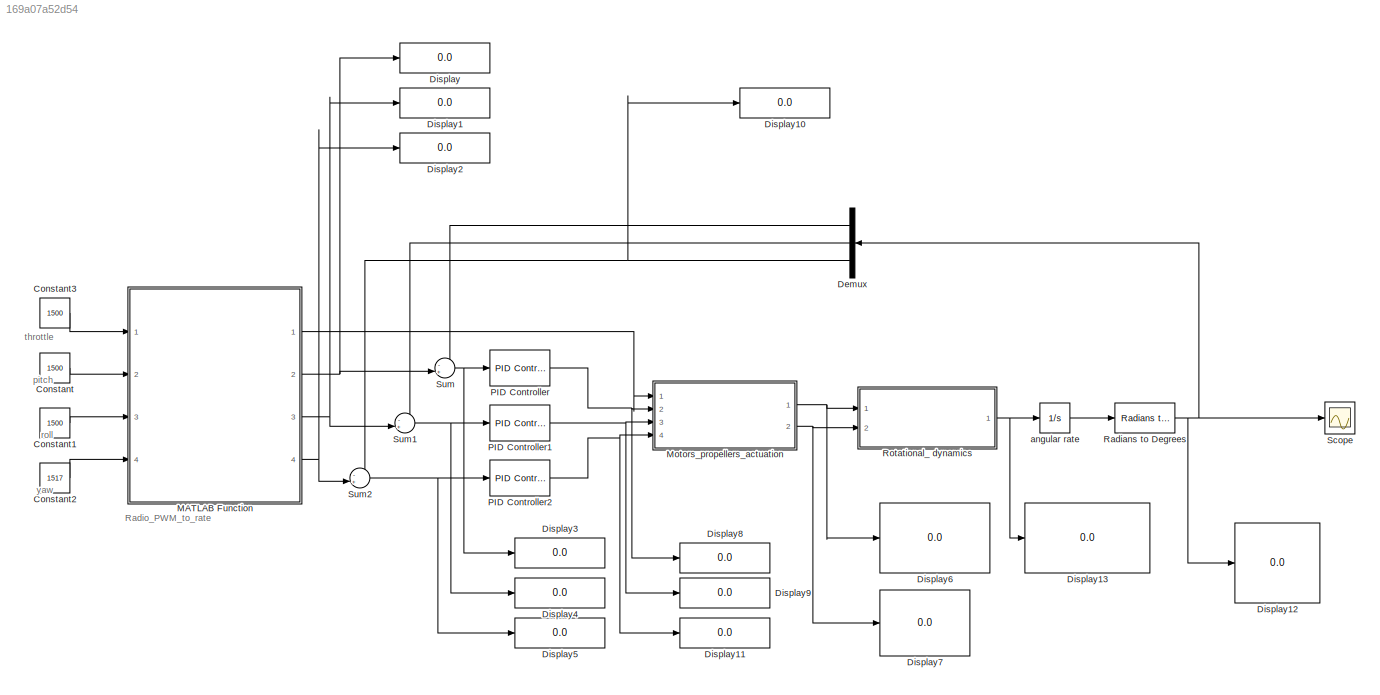
MODEL slx_169a07a52d54
KIND model
CONFIG AbsTol = auto
CONFIG EnableMultiTasking = off
CONFIG FixedStep = auto
CONFIG MaxStep = auto
CONFIG MinStep = auto
CONFIG RelTol = 1e-3
CONFIG SampleTimeConstraint = Unconstrained
CONFIG Solver = VariableStepAuto
CONFIG SolverName = VariableStepAuto
CONFIG StartTime = 0.0
CONFIG StopTime = 1
BLOCK [Constant] Constant
  Value = 1500
BLOCK [Constant] Constant1
  Value = 1500
BLOCK [Constant] Constant2
  Value = 1517
BLOCK [Constant] Constant3
  Value = 1500
BLOCK [Demux] Demux
  DisplayOption = bar
  Outputs = 3
  Ports = [1, 3]
BLOCK [Display] Display
  Decimation = 1
  Ports = [1]
BLOCK [Display] Display1
  Decimation = 1
  Ports = [1]
BLOCK [Display] Display10
  Decimation = 1
  Ports = [1]
BLOCK [Display] Display11
  Decimation = 1
  Ports = [1]
BLOCK [Display] Display12
  Decimation = 1
  Ports = [1]
BLOCK [Display] Display13
  Decimation = 1
  Format = long
  Ports = [1]
BLOCK [Display] Display2
  Decimation = 1
  Ports = [1]
BLOCK [Display] Display3
  Decimation = 1
  Ports = [1]
BLOCK [Display] Display4
  Decimation = 1
  Ports = [1]
BLOCK [Display] Display5
  Decimation = 1
  Ports = [1]
BLOCK [Display] Display6
  Decimation = 2
  Format = long
  Ports = [1]
BLOCK [Display] Display7
  Decimation = 1
  Ports = [1]
BLOCK [Display] Display8
  Decimation = 1
  Ports = [1]
BLOCK [Display] Display9
  Decimation = 1
  Ports = [1]
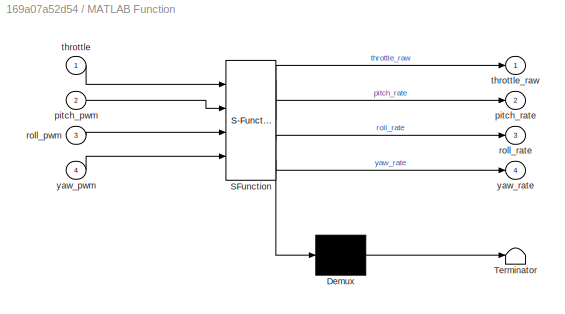
BLOCK [SubSystem] MATLAB Function
  ErrorFcn = Stateflow.Translate.translate
  PermitHierarchicalResolution = ExplicitOnly
  Ports = [4, 4]
  RequestExecContextInheritance = off
  SFBlockType = MATLAB Function
  TreatAsAtomicUnit = on
BLOCK [Demux] MATLAB Function/ Demux 
  Outputs = 1
  Ports = [1, 1]
BLOCK [S-Function] MATLAB Function/ SFunction 
  EnableBusSupport = on
  FunctionName = sf_sfun
  PortCounts = [4 5]
  Ports = [4, 5]
  SFcnIsStateOwnerBlock = off
  SFunctionDeploymentMode = off
  Tag = Stateflow S-Function quadcopter_model 3
BLOCK [Terminator] MATLAB Function/ Terminator 
BLOCK [Inport] MATLAB Function/pitch_pwm
  IconDisplay = Port number
  Port = 2
BLOCK [Outport] MATLAB Function/pitch_rate
  IconDisplay = Port number
  Port = 2
BLOCK [Inport] MATLAB Function/roll_pwm
  IconDisplay = Port number
  Port = 3
BLOCK [Outport] MATLAB Function/roll_rate
  IconDisplay = Port number
  Port = 3
BLOCK [Inport] MATLAB Function/throttle
  IconDisplay = Port number
BLOCK [Outport] MATLAB Function/throttle_raw
  IconDisplay = Port number
BLOCK [Inport] MATLAB Function/yaw_pwm
  IconDisplay = Port number
  Port = 4
BLOCK [Outport] MATLAB Function/yaw_rate
  IconDisplay = Port number
  Port = 4
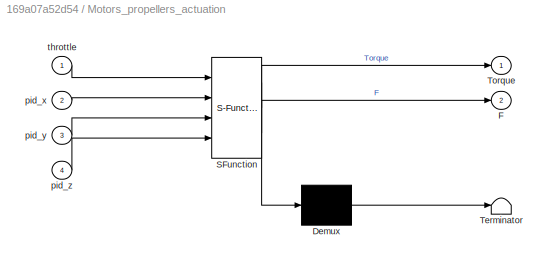
BLOCK [SubSystem] Motors_propellers_actuation 
  ErrorFcn = Stateflow.Translate.translate
  PermitHierarchicalResolution = ExplicitOnly
  Ports = [4, 2]
  RequestExecContextInheritance = off
  SFBlockType = MATLAB Function
  TreatAsAtomicUnit = on
BLOCK [Demux] Motors_propellers_actuation / Demux 
  Outputs = 1
  Ports = [1, 1]
BLOCK [S-Function] Motors_propellers_actuation / SFunction 
  EnableBusSupport = on
  FunctionName = sf_sfun
  PortCounts = [4 3]
  Ports = [4, 3]
  SFcnIsStateOwnerBlock = off
  SFunctionDeploymentMode = off
  Tag = Stateflow S-Function quadcopter_model 2
BLOCK [Terminator] Motors_propellers_actuation / Terminator 
BLOCK [Outport] Motors_propellers_actuation /F
  IconDisplay = Port number
  Port = 2
BLOCK [Outport] Motors_propellers_actuation /Torque
  IconDisplay = Port number
BLOCK [Inport] Motors_propellers_actuation /pid_x
  IconDisplay = Port number
  Port = 2
BLOCK [Inport] Motors_propellers_actuation /pid_y
  IconDisplay = Port number
  Port = 3
BLOCK [Inport] Motors_propellers_actuation /pid_z
  IconDisplay = Port number
  Port = 4
BLOCK [Inport] Motors_propellers_actuation /throttle
  IconDisplay = Port number
BLOCK [Reference] PID Controller  REF=simulink/Continuous/PID Controller
  Ports = [1, 1]
  SourceBlock = simulink/Continuous/PID Controller
  SourceProductBaseCode = SL
  SourceProductName = Simulink
  SourceType = PID 1dof
BLOCK [Reference] PID Controller1  REF=simulink/Continuous/PID Controller
  Ports = [1, 1]
  SourceBlock = simulink/Continuous/PID Controller
  SourceProductBaseCode = SL
  SourceProductName = Simulink
  SourceType = PID 1dof
BLOCK [Reference] PID Controller2  REF=simulink/Continuous/PID Controller
  Ports = [1, 1]
  SourceBlock = simulink/Continuous/PID Controller
  SourceProductBaseCode = SL
  SourceProductName = Simulink
  SourceType = PID 1dof
BLOCK [Reference] Radians to Degrees  REF=simulink_extras/Transformations/Radians
to Degrees
  Ports = [1, 1]
  SourceBlock = simulink_extras/Transformations/Radians\nto Degrees
  SourceProductBaseCode = SL
  SourceProductName = Simulink
  SourceType = RadiansToDegrees
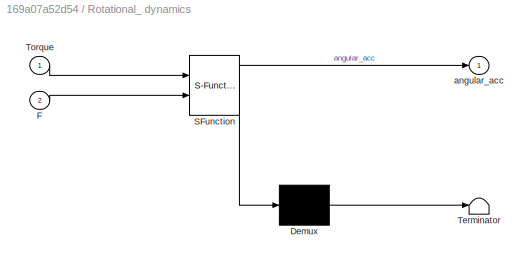
BLOCK [SubSystem] Rotational_ dynamics 
  ErrorFcn = Stateflow.Translate.translate
  PermitHierarchicalResolution = ExplicitOnly
  Ports = [2, 1]
  RequestExecContextInheritance = off
  SFBlockType = MATLAB Function
  TreatAsAtomicUnit = on
BLOCK [Demux] Rotational_ dynamics / Demux 
  Outputs = 1
  Ports = [1, 1]
BLOCK [S-Function] Rotational_ dynamics / SFunction 
  EnableBusSupport = on
  FunctionName = sf_sfun
  PortCounts = [2 2]
  Ports = [2, 2]
  SFcnIsStateOwnerBlock = off
  SFunctionDeploymentMode = off
  Tag = Stateflow S-Function quadcopter_model 1
BLOCK [Terminator] Rotational_ dynamics / Terminator 
BLOCK [Inport] Rotational_ dynamics /F
  IconDisplay = Port number
  Port = 2
BLOCK [Inport] Rotational_ dynamics /Torque
  IconDisplay = Port number
BLOCK [Outport] Rotational_ dynamics /angular_acc
  IconDisplay = Port number
BLOCK [Scope] Scope
  Floating = off
  NumInputPorts = 1
  Ports = [1]
  ScopeSpecificationString = Simulink.scopes.TimeScopeBlockCfg('CurrentConfiguration', extmgr.ConfigurationSet(extmgr.Configuration('Core','General UI',true),extmgr.Configuration('Core','Source UI',true),extmgr.Configuration('Sources','WiredSimulink',true),extmgr.Configuration('Visuals','Time Domain',true,'SerializedDisplays',{struct('MinYLimReal','-1.83347','MaxYLimReal','6.45188','YLabelReal','','MinYLimMag','0.00000','MaxY...<+1436ch>
BLOCK [Sum] Sum
  IconShape = round
  InputSameDT = off
  Inputs = -+|
  OutDataTypeStr = Inherit: Inherit via internal rule
  Ports = [2, 1]
  SaturateOnIntegerOverflow = off
BLOCK [Sum] Sum1
  IconShape = round
  InputSameDT = off
  Inputs = -+|
  OutDataTypeStr = Inherit: Inherit via internal rule
  Ports = [2, 1]
  SaturateOnIntegerOverflow = off
BLOCK [Sum] Sum2
  IconShape = round
  InputSameDT = off
  Inputs = -+|
  OutDataTypeStr = Inherit: Inherit via internal rule
  Ports = [2, 1]
  SaturateOnIntegerOverflow = off
BLOCK [Integrator] angular rate
  Ports = [1, 1]
ANNOTATION (root): Radio_PWM_to_rate
ANNOTATION (root): pitch
ANNOTATION (root): roll
ANNOTATION (root): throttle
ANNOTATION (root): yaw
LINE Constant1:1 -> MATLAB Function:3
LINE Constant2:1 -> MATLAB Function:4
LINE Constant3:1 -> MATLAB Function:1
LINE Constant:1 -> MATLAB Function:2
LINE Demux:1 -> Sum:1
LINE Demux:2 -> Sum1:1
NET Demux:3 -> Display10:1, Sum2:1
LINE MATLAB Function:1 -> Motors_propellers_actuation :1
NET MATLAB Function:2 -> Display:1, Sum:2
NET MATLAB Function:3 -> Display1:1, Sum1:2
NET MATLAB Function:4 -> Display2:1, Sum2:2
NET Motors_propellers_actuation :1 -> Display6:1, Rotational_ dynamics :1
NET Motors_propellers_actuation :2 -> Display7:1, Rotational_ dynamics :2
NET PID Controller1:1 -> Display9:1, Motors_propellers_actuation :3
NET PID Controller2:1 -> Display11:1, Motors_propellers_actuation :4
NET PID Controller:1 -> Display8:1, Motors_propellers_actuation :2
NET Radians to Degrees:1 -> Demux:1, Display12:1, Scope:1
NET Rotational_ dynamics :1 -> Display13:1, angular rate:1
NET Sum1:1 -> Display4:1, PID Controller1:1
NET Sum2:1 -> Display5:1, PID Controller2:1
NET Sum:1 -> Display3:1, PID Controller:1
LINE angular rate:1 -> Radians to Degrees:1
note: NET lines group one-source signal fan-out (src -> all destinations, sorted); 1:1 wires keep LINE
CHART Rotational_
dynamics
 states=1 transitions=1
  STATE_LABEL 'eML_blk_kernel()'
  STATE_LABEL 'SCRIPT:\nfunction angular_acc = fcn(Torque, F)\n    Moment      = [0 0 0];\n    angular_acc = [0 0 0];\n    Inertia     = [0.00305 0.00305 0.00611]; %Inertia for X,Y,Z\n    axis_to_com = 0.1166;                    %distance between rotation axis and the center of mass of the vehicle\n\n    \n    Moment(1) = (F(1)+F(3))*axis_to_com-(F(2)+F(4))*axis_to_com;\n    Moment(2) = (F(1)+F(2))*axis_to_com-(F(4)+F(3)...<+157ch>'
CHART Motors_propellers_actuation
 states=1 transitions=1
  STATE_LABEL 'eML_blk_kernel()'
  STATE_LABEL 'SCRIPT:\n\nfunction [Torque,F] = fcn(throttle,pid_x,pid_y,pid_z)\n    %Parameters names, except the phisical ones, are directly taken from the C code implementation i.o.t. have 1:1 match  \n    RPM            = [0 0 0 0];\n    Torque         = [0 0 0 0];\n    F              = [0 0 0 0];\n    Voltage        = [0 0 0 0];\n    \n    if( throttle > 1800 )\n        throttle = 1800;  %leave room for PID controlle...<+1255ch>'
CHART MATLAB Function states=1 transitions=1
  STATE_LABEL 'eML_blk_kernel()'
  STATE_LABEL 'SCRIPT:\nfunction [throttle_raw,pitch_rate,roll_rate,yaw_rate] = fcn(throttle,pitch_pwm,roll_pwm,yaw_pwm)\n\nDEADBAND_UPPER_BOUND      = 1508;\nDEADBAND_LOWER_BOUND      = 1492;\nSETPOINT_PITCH_SPEED_RATE = 3.0;\nSETPOINT_ROLL_SPEED_RATE  = 3.0;\nSETPOINT_YAW_SPEED_RATE   = 3.0;\n\npitch_rate   = 0;\nroll_rate    = 0;\nyaw_rate     = 0;\nthrottle_raw = throttle;\n\n\n\n\nif( pitch_pwm > DEADBAND_UPPER_BOUND )\n    ...<+699ch>'
